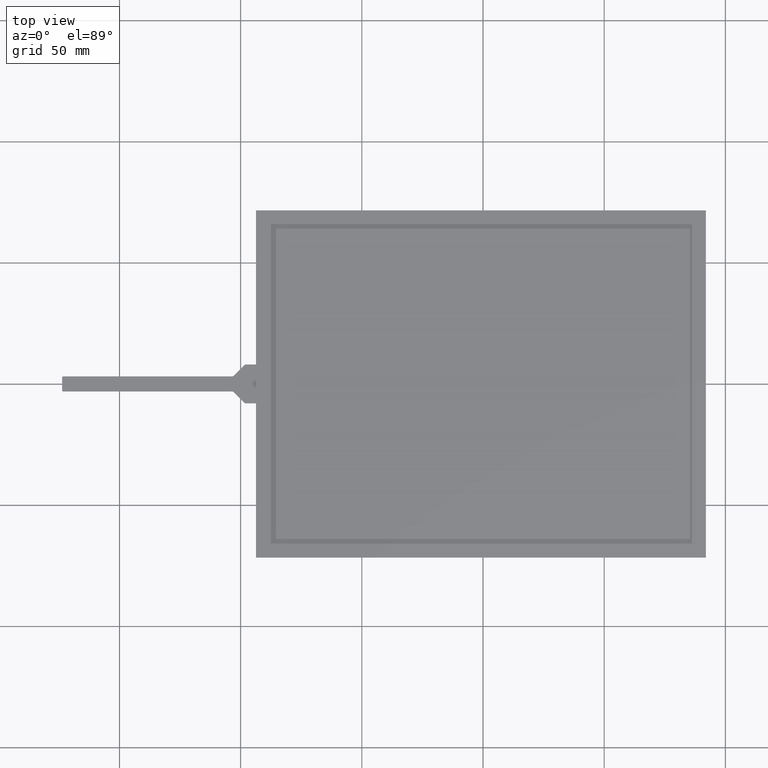
[diagram: clean part render]
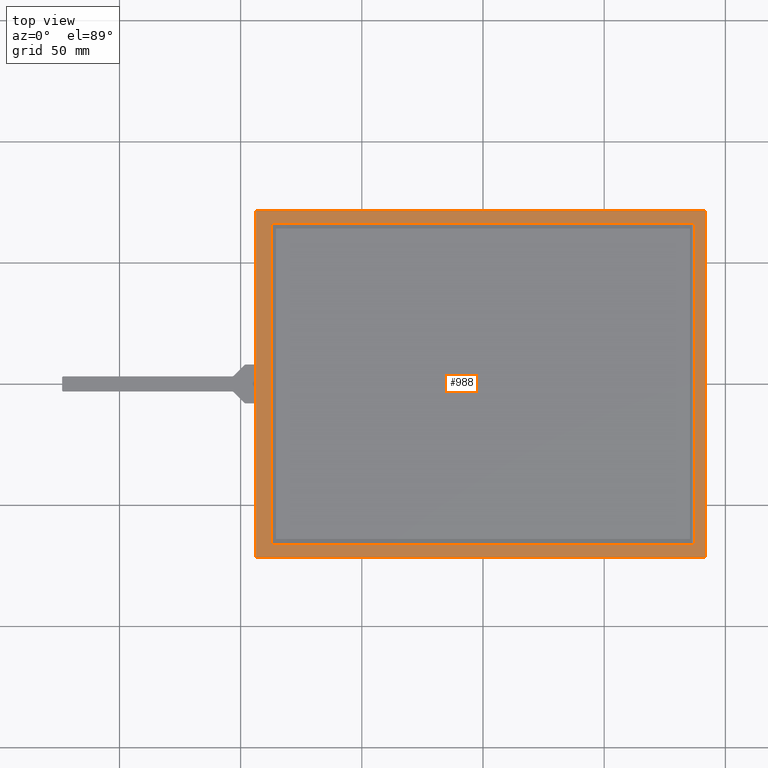
[diagram: same view with one face highlighted and labeled with its STEP entity id]
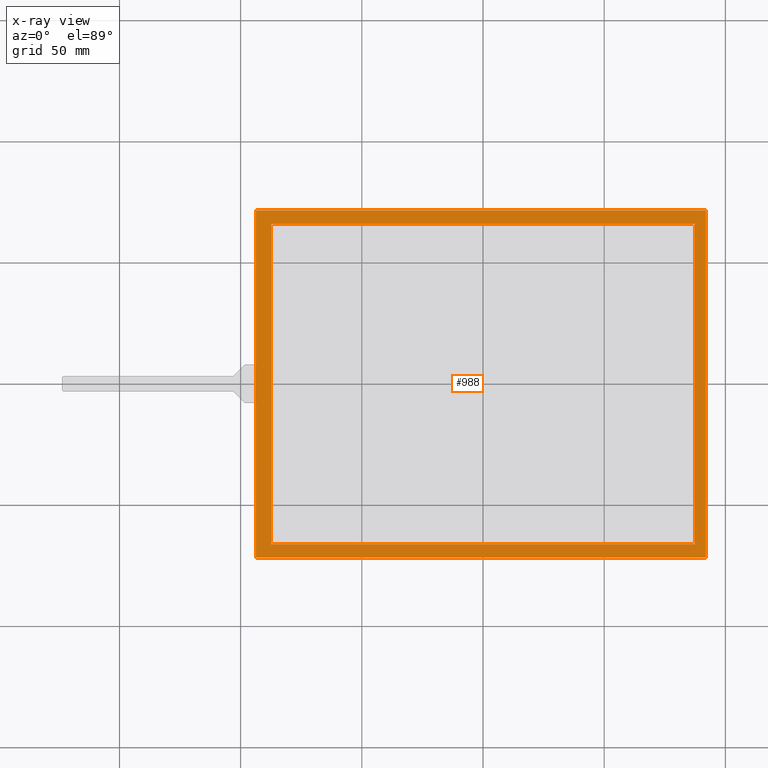
[diagram: x-ray of the same camera — body ghosted, the highlighted face saturated]
A machine part, top view. The second image highlights one B-rep face of the part: STEP entity #988.
The next image is the same camera in x-ray: the body ghosted, the highlighted face saturated — about 0% of this face is hidden behind the body in this view.
In plain terms, the highlighted planar face has unit normal (0, 0, 1).
Its self-contained STEP definition (entity closure, byte-faithful):
#16=FACE_BOUND('',#160,.T.);
#56=PLANE('',#1071);
#107=FACE_OUTER_BOUND('',#159,.T.);
#159=EDGE_LOOP('',(#902,#903,#904,#905));
#160=EDGE_LOOP('',(#906,#907,#908,#909));
#270=LINE('',#1565,#396);
#274=LINE('',#1573,#400);
#277=LINE('',#1579,#403);
#280=LINE('',#1584,#406);
#282=LINE('',#1590,#408);
#283=LINE('',#1592,#409);
#284=LINE('',#1594,#410);
#285=LINE('',#1595,#411);
#396=VECTOR('',#1286,10.);
#400=VECTOR('',#1292,10.);
#403=VECTOR('',#1297,10.);
#406=VECTOR('',#1302,10.);
#408=VECTOR('',#1308,10.);
#409=VECTOR('',#1309,10.);
#410=VECTOR('',#1310,10.);
#411=VECTOR('',#1311,10.);
#508=VERTEX_POINT('',#1563);
#509=VERTEX_POINT('',#1564);
#512=VERTEX_POINT('',#1572);
#514=VERTEX_POINT('',#1578);
#516=VERTEX_POINT('',#1588);
#517=VERTEX_POINT('',#1589);
#518=VERTEX_POINT('',#1591);
#519=VERTEX_POINT('',#1593);
#638=EDGE_CURVE('',#508,#509,#270,.T.);
#642=EDGE_CURVE('',#512,#508,#274,.T.);
#645=EDGE_CURVE('',#514,#512,#277,.T.);
#648=EDGE_CURVE('',#509,#514,#280,.T.);
#650=EDGE_CURVE('',#516,#517,#282,.T.);
#651=EDGE_CURVE('',#517,#518,#283,.T.);
#652=EDGE_CURVE('',#518,#519,#284,.T.);
#653=EDGE_CURVE('',#519,#516,#285,.T.);
#902=ORIENTED_EDGE('',*,*,#650,.T.);
#903=ORIENTED_EDGE('',*,*,#651,.T.);
#904=ORIENTED_EDGE('',*,*,#652,.T.);
#905=ORIENTED_EDGE('',*,*,#653,.T.);
#906=ORIENTED_EDGE('',*,*,#638,.T.);
#907=ORIENTED_EDGE('',*,*,#648,.T.);
#908=ORIENTED_EDGE('',*,*,#645,.T.);
#909=ORIENTED_EDGE('',*,*,#642,.T.);
#988=ADVANCED_FACE('',(#107,#16),#56,.T.);
#1071=AXIS2_PLACEMENT_3D('',#1587,#1306,#1307);
#1286=DIRECTION('',(-2.68534669599433E-16,1.,0.));
#1292=DIRECTION('',(-1.,-1.52346212641531E-16,0.));
#1297=DIRECTION('',(0.,-1.,0.));
#1302=DIRECTION('',(1.,0.,0.));
#1306=DIRECTION('center_axis',(0.,0.,1.));
#1307=DIRECTION('ref_axis',(1.,0.,0.));
#1308=DIRECTION('',(-1.,0.,0.));
#1309=DIRECTION('',(2.47921401172401E-16,-1.,0.));
#1310=DIRECTION('',(1.,1.91417762866406E-16,0.));
#1311=DIRECTION('',(0.,1.,0.));
#1563=CARTESIAN_POINT('',(-87.45,-66.15,0.));
#1564=CARTESIAN_POINT('',(-87.45,66.15,0.));
#1565=CARTESIAN_POINT('',(-87.45,-33.075,0.));
#1572=CARTESIAN_POINT('',(87.45,-66.15,0.));
#1573=CARTESIAN_POINT('',(43.3,-66.15,0.));
#1578=CARTESIAN_POINT('',(87.45,66.15,0.));
#1579=CARTESIAN_POINT('',(87.45,33.075,0.));
#1584=CARTESIAN_POINT('',(-44.15,66.15,0.));
#1587=CARTESIAN_POINT('Origin',(-0.850000000000009,8.88178419700125E-15,
0.));
#1588=CARTESIAN_POINT('',(91.95,71.65,0.));
#1589=CARTESIAN_POINT('',(-93.65,71.65,0.));
#1590=CARTESIAN_POINT('',(91.95,71.65,0.));
#1591=CARTESIAN_POINT('',(-93.65,-71.65,0.));
#1592=CARTESIAN_POINT('',(-93.65,71.65,0.));
#1593=CARTESIAN_POINT('',(91.95,-71.65,0.));
#1594=CARTESIAN_POINT('',(-93.65,-71.65,0.));
#1595=CARTESIAN_POINT('',(91.95,-71.65,0.));